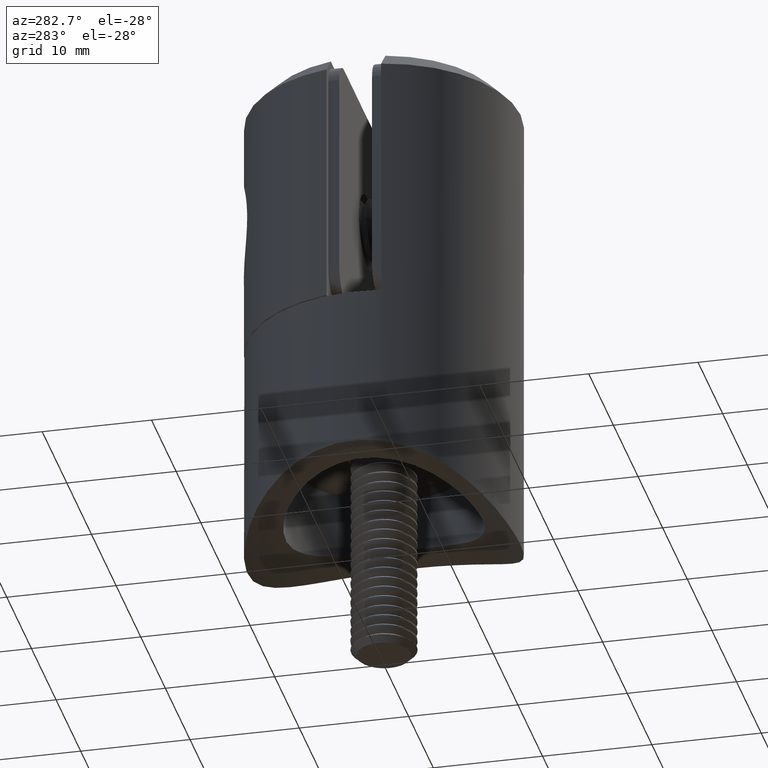
[diagram: clean part render]
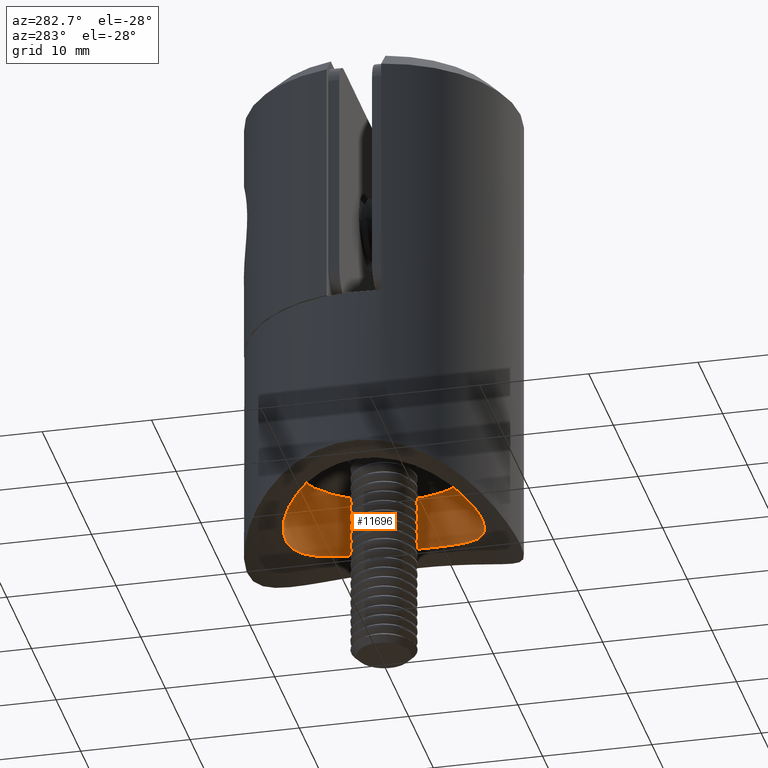
[diagram: same view with one face highlighted and labeled with its STEP entity id]
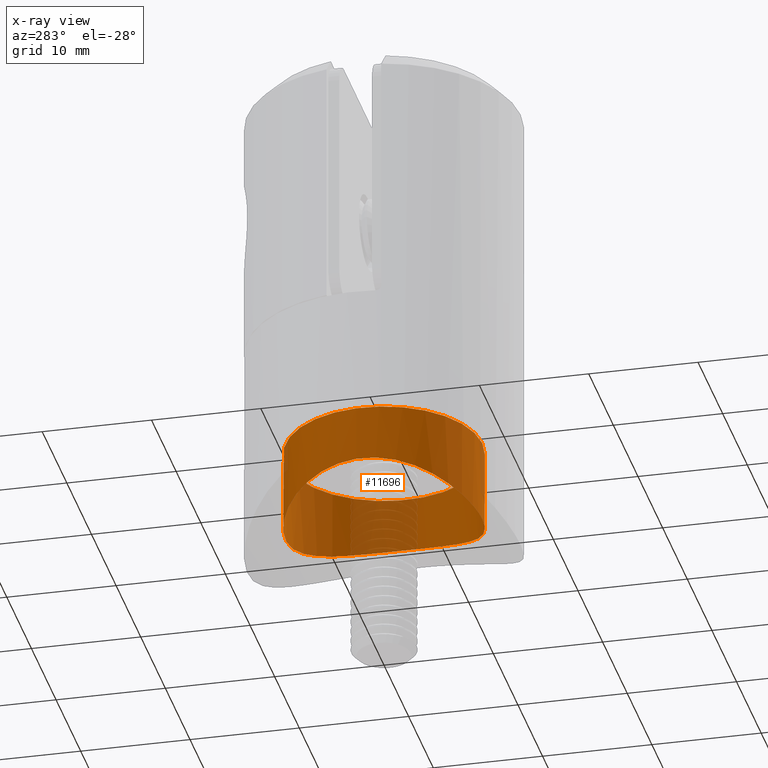
[diagram: x-ray of the same camera — body ghosted, the highlighted face saturated]
A machine part, auxiliary view. The second image highlights one B-rep face of the part: STEP entity #11696.
The next image is the same camera in x-ray: the body ghosted, the highlighted face saturated — about 17% of this face is hidden behind the body in this view.
In plain terms, the highlighted cylindrical surface (bore or boss wall) has radius 9 mm, axis along (0, -0, 1).
Its self-contained STEP definition (entity closure, byte-faithful):
#174 = CARTESIAN_POINT ( 'NONE',  ( 4.021674449052479616, -8.072784026240096722, -2.057415797895000065 ) ) ;
#248 = CARTESIAN_POINT ( 'NONE',  ( 4.532650516029328003, -7.797088794533236999, -1.908139167098889200 ) ) ;
#327 = CARTESIAN_POINT ( 'NONE',  ( 5.517095482785879135, 7.134608504950914920, -1.580667870768156735 ) ) ;
#401 = CARTESIAN_POINT ( 'NONE',  ( 5.961424383751998235, 6.767025709518398990, -1.412278814942806937 ) ) ;
#477 = CARTESIAN_POINT ( 'NONE',  ( -0.6068572968801682066, -8.984605093228687167, -2.595152866920289902 ) ) ;
#553 = CARTESIAN_POINT ( 'NONE',  ( -6.764565898683120970, -5.943528670731239139, -1.081228008002660612 ) ) ;
#634 = CARTESIAN_POINT ( 'NONE',  ( -7.134810432546720982, -5.493574878806451345, -0.9188877272693009024 ) ) ;
#703 = CARTESIAN_POINT ( 'NONE',  ( -0.3035544264433384098, -9.000000000000003553, -2.604913127678025742 ) ) ;
#1010 = VERTEX_POINT ( 'NONE', #16358 ) ;
#1539 = FACE_OUTER_BOUND ( 'NONE', #9888, .T. ) ;
#1887 = CARTESIAN_POINT ( 'NONE',  ( 0.6071088528866762646, -8.999999999999998224, -2.604913127678025297 ) ) ;
#2049 = CARTESIAN_POINT ( 'NONE',  ( 8.062832806003342512, -4.041567885135377125, -0.4825650288407893340 ) ) ;
#2122 = CARTESIAN_POINT ( 'NONE',  ( 1.201100035928155840, -8.939234714585204244, -2.566035329679036359 ) ) ;
#2350 = CARTESIAN_POINT ( 'NONE',  ( -8.516329794651968044, 2.969016380059766202, -0.2544752274107902612 ) ) ;
#2422 = CARTESIAN_POINT ( 'NONE',  ( -3.186124711963689293, 8.422361920626260101, -2.255363534646165125 ) ) ;
#2500 = CARTESIAN_POINT ( 'NONE',  ( -8.883506363623128621, -1.474042599237735285, -0.06200751960803015106 ) ) ;
#3216 = FACE_OUTER_BOUND ( 'NONE', #7604, .T. ) ;
#3680 = CARTESIAN_POINT ( 'NONE',  ( 8.883008077904751332, 1.476751091017766804, -0.06227058032519545983 ) ) ;
#3756 = CARTESIAN_POINT ( 'NONE',  ( 8.404898307200049601, -3.231651342975608632, -0.3104986706441259514 ) ) ;
#3828 = CARTESIAN_POINT ( 'NONE',  ( 8.506565268108300160, -2.954257939733778926, -0.2584842095002851114 ) ) ;
#3901 = CARTESIAN_POINT ( 'NONE',  ( 9.000737208537470835, 0.2776672623730780942, 0.0003937603037528359783 ) ) ;
#3980 = CARTESIAN_POINT ( 'NONE',  ( -3.758905916802290470, -8.182656430668179937, -2.119638485047900645 ) ) ;
#4054 = CARTESIAN_POINT ( 'NONE',  ( -8.694172512475297765, 2.403321873601205638, -0.1616672161600611057 ) ) ;
#4127 = CARTESIAN_POINT ( 'NONE',  ( -2.339698213813243388, 8.695601738897538624, -2.416736740360900360 ) ) ;
#4200 = CARTESIAN_POINT ( 'NONE',  ( -2.951555618486545463, -8.522281340456130394, -2.311744009398445598 ) ) ;
#4273 = CARTESIAN_POINT ( 'NONE',  ( -2.168404344971008868E-16, -9.000000000000001776, -2.604913127678025742 ) ) ;
#5446 = CARTESIAN_POINT ( 'NONE',  ( 2.940399998006669957, -8.526297857816196313, -2.314091560879915743 ) ) ;
#5686 = CARTESIAN_POINT ( 'NONE',  ( 5.937473838987435748, -6.769756498228755248, -1.418430931824774532 ) ) ;
#5760 = CARTESIAN_POINT ( 'NONE',  ( -7.767459701366191460, 4.555459080950839734, -0.6252966877314042327 ) ) ;
#5834 = CARTESIAN_POINT ( 'NONE',  ( -8.986879830245944945, -0.5722147814154134871, -0.007022464014128086685 ) ) ;
#5835 = AXIS2_PLACEMENT_3D ( 'NONE', #15729, #21270, #8842 ) ;
#5899 = EDGE_CURVE ( 'NONE', #12223, #12223, #22097, .T. ) ;
#5913 = CARTESIAN_POINT ( 'NONE',  ( -7.613883850405601450, 4.807725246531381558, -0.6984488539629386539 ) ) ;
#5985 = CARTESIAN_POINT ( 'NONE',  ( -2.390370181689100537, -8.697453753089330775, -2.417513435117696563 ) ) ;
#6059 = CARTESIAN_POINT ( 'NONE',  ( 2.102059484055854632, 8.756187516724763142, -2.453588714871738574 ) ) ;
#6090 = CIRCLE ( 'NONE', #5835, 9.000000000000000000 ) ;
#7159 = CARTESIAN_POINT ( 'NONE',  ( -2.168404344971008868E-16, -9.000000000000001776, -2.604913127678025742 ) ) ;
#7392 = CARTESIAN_POINT ( 'NONE',  ( 8.074481764611894263, 4.019086237761176683, -0.4768262851625539311 ) ) ;
#7471 = CARTESIAN_POINT ( 'NONE',  ( 6.557765720885472938, -6.170767472243698926, -1.169049366952235269 ) ) ;
#7604 = EDGE_LOOP ( 'NONE', ( #23047 ) ) ;
#7618 = CARTESIAN_POINT ( 'NONE',  ( 1.223008817333227416, 8.936562260900341670, -2.564333553120044407 ) ) ;
#7684 = ORIENTED_EDGE ( 'NONE', *, *, #5899, .F. ) ;
#7692 = CARTESIAN_POINT ( 'NONE',  ( -7.783269436300308541, -4.528431843985459615, -0.6177173694178605956 ) ) ;
#7769 = CARTESIAN_POINT ( 'NONE',  ( -8.998160360196068908, 0.6254606039707997223, -0.0009825937895370222708 ) ) ;
#7851 = CARTESIAN_POINT ( 'NONE',  ( -2.052070582208244787, 8.767997700604160727, -2.460788958126638892 ) ) ;
#8779 = CARTESIAN_POINT ( 'NONE',  ( 0.000000000000000000, -9.000000000000000000, -2.604913127678024853 ) ) ;
#8842 = DIRECTION ( 'NONE',  ( 0.000000000000000000, -1.000000000000000000, 0.000000000000000000 ) ) ;
#9027 = CARTESIAN_POINT ( 'NONE',  ( 7.797067203172933780, 4.532702480700874226, -0.6131899224023025230 ) ) ;
#9098 = CARTESIAN_POINT ( 'NONE',  ( 2.365092918737797145, -8.703958528421887664, -2.421463347902026886 ) ) ;
#9175 = CARTESIAN_POINT ( 'NONE',  ( 6.571452150948918103, 6.156201835296487346, -1.163317047625913814 ) ) ;
#9254 = CARTESIAN_POINT ( 'NONE',  ( 7.297147494087158570, -5.276021894448018834, -0.8453118274224331596 ) ) ;
#9417 = CARTESIAN_POINT ( 'NONE',  ( -5.935974566348900083, 6.789418910662329054, -1.422137807243880836 ) ) ;
#9503 = CARTESIAN_POINT ( 'NONE',  ( 3.234350838250579230, 8.403798506831432036, -2.244671233382895092 ) ) ;
#9582 = CARTESIAN_POINT ( 'NONE',  ( -1.208437933319258972, -8.923624948492779652, -2.556899802793691112 ) ) ;
#9653 = CARTESIAN_POINT ( 'NONE',  ( -4.005697824238152016, 8.081130425237397219, -2.061957311337415888 ) ) ;
#9888 = EDGE_LOOP ( 'NONE', ( #7684 ) ) ;
#10010 = AXIS2_PLACEMENT_3D ( 'NONE', #10326, #22814, #21242 ) ;
#10326 = CARTESIAN_POINT ( 'NONE',  ( 0.000000000000000000, 0.000000000000000000, 15.00000000000000000 ) ) ;
#10766 = CARTESIAN_POINT ( 'NONE',  ( 8.937286215225501707, -1.216522046379911792, -0.03371875276809734034 ) ) ;
#10847 = CARTESIAN_POINT ( 'NONE',  ( 7.309796590042279441, 5.258496553154990316, -0.8395366300943820637 ) ) ;
#11083 = CARTESIAN_POINT ( 'NONE',  ( 8.417081813282704772, 3.200048630397409610, -0.3043047385794946380 ) ) ;
#11162 = CARTESIAN_POINT ( 'NONE',  ( -8.061523673450730954, -4.012208138427211246, -0.4824748291423540669 ) ) ;
#11239 = CARTESIAN_POINT ( 'NONE',  ( -7.632550779483405989, -4.777935619119118904, -0.6896250358067936848 ) ) ;
#11309 = CARTESIAN_POINT ( 'NONE',  ( -4.517992317400698177, 7.805392656181976641, -1.912540458132593990 ) ) ;
#11389 = CARTESIAN_POINT ( 'NONE',  ( -8.707274720112538446, -2.353999689058943190, -0.1548163266117390802 ) ) ;
#11468 = CARTESIAN_POINT ( 'NONE',  ( 0.6309608859205878550, 8.997763151772495860, -2.603499907095298660 ) ) ;
#11696 = ADVANCED_FACE ( 'NONE', ( #1539, #3216 ), #18285, .F. ) ;
#12223 = VERTEX_POINT ( 'NONE', #8779 ) ;
#12670 = CARTESIAN_POINT ( 'NONE',  ( 8.758507331697291676, -2.092200281080137891, -0.1278176303844500705 ) ) ;
#12743 = CARTESIAN_POINT ( 'NONE',  ( 6.751927895200894092, -5.957807994985252265, -1.086641762514614973 ) ) ;
#12898 = CARTESIAN_POINT ( 'NONE',  ( 7.121273697717668050, -5.511031421548653775, -0.9249420189717384444 ) ) ;
#13055 = CARTESIAN_POINT ( 'NONE',  ( -5.954642221051528850, -6.773231474935260010, -1.414947323043689531 ) ) ;
#13133 = CARTESIAN_POINT ( 'NONE',  ( -5.510746426112774543, -7.139208689779462880, -1.582878771086205560 ) ) ;
#13208 = CARTESIAN_POINT ( 'NONE',  ( -0.5654481320849249482, 9.002117627807262323, -2.606251025532276611 ) ) ;
#13374 = EDGE_CURVE ( 'NONE', #1010, #1010, #6090, .T. ) ;
#14364 = CARTESIAN_POINT ( 'NONE',  ( 8.927228162158151292, 1.181156269983224760, -0.03877518060709229247 ) ) ;
#14443 = CARTESIAN_POINT ( 'NONE',  ( 6.150538336385890759, -6.576742401764647639, -1.334941400903023823 ) ) ;
#14526 = CARTESIAN_POINT ( 'NONE',  ( 5.491805371263069446, -7.136054399886307742, -1.584363604715454343 ) ) ;
#14668 = CARTESIAN_POINT ( 'NONE',  ( -4.789036509286504817, -7.625567915572273314, -1.823160285720819340 ) ) ;
#14826 = CARTESIAN_POINT ( 'NONE',  ( -7.121846342639296168, 5.533633707270937840, -0.9264732590264234124 ) ) ;
#14905 = CARTESIAN_POINT ( 'NONE',  ( -9.000858815726555662, -0.2721457111335667256, 0.0004587131148253563331 ) ) ;
#14973 = CARTESIAN_POINT ( 'NONE',  ( -4.537604543765375809, -7.777914304797524103, -1.901707409948041771 ) ) ;
#15729 = CARTESIAN_POINT ( 'NONE',  ( 0.000000000000000000, 8.750999659232643128E-18, 5.100000000000000533 ) ) ;
#16142 = CARTESIAN_POINT ( 'NONE',  ( 8.766001538176636743, 2.060544425541007918, -0.1238883919959151148 ) ) ;
#16222 = CARTESIAN_POINT ( 'NONE',  ( 5.258310225204646748, -7.309928328518856766, -1.667105923545979307 ) ) ;
#16358 = CARTESIAN_POINT ( 'NONE',  ( 0.000000000000000000, -9.000000000000000000, 5.100000000000000533 ) ) ;
#16443 = CARTESIAN_POINT ( 'NONE',  ( -5.482500273980068783, 7.160907752727982967, -1.593091655285288955 ) ) ;
#16527 = CARTESIAN_POINT ( 'NONE',  ( -8.937290988820059567, 1.220418569986010393, -0.03372854505642237238 ) ) ;
#16597 = CARTESIAN_POINT ( 'NONE',  ( -6.753306804108660799, 5.977026886871091627, -1.089597385321879219 ) ) ;
#16684 = CARTESIAN_POINT ( 'NONE',  ( 4.548909255757392245, 7.787708627573261211, -1.903203134994748913 ) ) ;
#16758 = CARTESIAN_POINT ( 'NONE',  ( -6.568056148921646020, -6.159890061767200109, -1.164751887033820710 ) ) ;
#17944 = CARTESIAN_POINT ( 'NONE',  ( 8.693213217374987423, 2.348742300159040841, -0.1620132209545272484 ) ) ;
#18101 = CARTESIAN_POINT ( 'NONE',  ( 8.998437823462582585, -0.6241749436309397270, -0.0008343950433961575810 ) ) ;
#18285 = CYLINDRICAL_SURFACE ( 'NONE', #10010, 9.000000000000000000 ) ;
#18326 = CARTESIAN_POINT ( 'NONE',  ( -1.175460298121181912, 8.942784940732853016, -2.568270068185634969 ) ) ;
#18405 = CARTESIAN_POINT ( 'NONE',  ( -8.928204569007862190, -1.174138839021471759, -0.03825648481109164556 ) ) ;
#18480 = CARTESIAN_POINT ( 'NONE',  ( -1.509137806476183563, -8.877634590881921639, -2.528161024891539821 ) ) ;
#18547 = CARTESIAN_POINT ( 'NONE',  ( -8.533463070077409895, -2.921239271995004216, -0.2456855461427894516 ) ) ;
#19646 = CARTESIAN_POINT ( 'NONE',  ( 7.785764892461922493, -4.552025852731574673, -0.6186302868605692007 ) ) ;
#19722 = CARTESIAN_POINT ( 'NONE',  ( 8.519084111116168145, 2.917833501594556900, -0.2520561277269852130 ) ) ;
#19870 = CARTESIAN_POINT ( 'NONE',  ( 6.765425809986876260, 5.942505359260779052, -1.080853520923607869 ) ) ;
#19951 = CARTESIAN_POINT ( 'NONE',  ( 8.986183028970739173, 0.5822777371568736982, -0.007394420722657757926 ) ) ;
#20108 = CARTESIAN_POINT ( 'NONE',  ( 2.959191228520106076, 8.504749320993935768, -2.303446895277071693 ) ) ;
#20180 = CARTESIAN_POINT ( 'NONE',  ( 4.039346743676782481, 8.063690013734731821, -2.052458506225574464 ) ) ;
#20251 = CARTESIAN_POINT ( 'NONE',  ( -7.308321160069399802, -5.260507770464919908, -0.8402078164440885955 ) ) ;
#20324 = CARTESIAN_POINT ( 'NONE',  ( -8.173918097422760098, 3.777935387974452830, -0.4266719453710701715 ) ) ;
#21242 = DIRECTION ( 'NONE',  ( 0.000000000000000000, -1.000000000000000000, 0.000000000000000000 ) ) ;
#21270 = DIRECTION ( 'NONE',  ( -0.000000000000000000, -8.839393595184489370E-19, 1.000000000000000000 ) ) ;
#21454 = CARTESIAN_POINT ( 'NONE',  ( 8.683790020312519786, -2.383502363788869705, -0.1669261620439285443 ) ) ;
#21696 = CARTESIAN_POINT ( 'NONE',  ( 7.134494571433200427, 5.493936980478559384, -0.9190236621247669380 ) ) ;
#21852 = CARTESIAN_POINT ( 'NONE',  ( -8.046985468913812056, 4.041245168714113767, -0.4896350133714367781 ) ) ;
#21930 = CARTESIAN_POINT ( 'NONE',  ( -8.189553005263972452, -3.744279541798008371, -0.4188871328026811947 ) ) ;
#22008 = CARTESIAN_POINT ( 'NONE',  ( 2.394114882269447353, 8.680771144915242488, -2.407798624479785321 ) ) ;
#22087 = CARTESIAN_POINT ( 'NONE',  ( -2.906197388975941376, 8.523009683764776412, -2.314151766958433942 ) ) ;
#22097 = B_SPLINE_CURVE_WITH_KNOTS ( 'NONE', 3,
 ( #7159, #1887, #2122, #9098, #5446, #174, #248, #16222, #14526, #5686, #14443, #7471, #12743, #12898, #9254, #19646, #2049, #3756, #3828, #21454, #12670, #10766, #18101, #3901, #19951, #14364, #3680, #16142, #17944, #19722, #11083, #7392, #9027, #10847, #21696, #19870, #9175, #401, #327, #16684, #20180, #9503, #20108, #22008, #6059, #7618, #11468, #13208, #18326, #7851, #4127, #22087, #2422, #9653, #11309, #16443, #9417, #16597, #14826, #5913, #5760, #21852, #20324, #2350, #4054, #16527, #7769, #14905, #5834, #18405, #2500, #11389, #18547, #21930, #11162, #7692, #11239, #20251, #634, #553, #16758, #13055, #13133, #14668, #14973, #22158, #3980, #4200, #5985, #18480, #9582, #477, #703, #4273 ),
 .UNSPECIFIED., .T., .F.,
 ( 4, 2, 2, 2, 2, 2, 2, 2, 2, 2, 2, 2, 2, 2, 2, 2, 2, 2, 2, 2, 2, 2, 2, 2, 2, 2, 2, 2, 2, 2, 2, 2, 2, 2, 2, 2, 2, 2, 2, 2, 2, 2, 2, 2, 2, 2, 4 ),
 ( 0.000000000000000000, 0.001791929199387558595, 0.003583858398775117190, 0.005375787598162675568, 0.006271752197856454540, 0.007167716797550232645, 0.008063681397244011617, 0.008959645996937791457, 0.01075157519632534940, 0.01164753979601912577, 0.01254350439571290388, 0.01433543359510046009, 0.01523139819479423646, 0.01612736279448801283, 0.01702332739418178920, 0.01791929199387556557, 0.01971122119326312178, 0.02060718579295690162, 0.02150315039265067799, 0.02329507959203823766, 0.02508700879142580081, 0.02598297339111958065, 0.02687893799081336049, 0.02867086719020092364, 0.03046279638958848332, 0.03135876098928226663, 0.03225472558897604647, 0.03404665478836359921, 0.03583858398775115889, 0.03763051318713871857, 0.03852647778683249841, 0.03942244238652627825, 0.04121437158591384486, 0.04300630078530140454, 0.04390226538499518438, 0.04479822998468896422, 0.04659015918407653084, 0.04748612378377031068, 0.04838208838346409052, 0.04927805298315787036, 0.05017401758285164326, 0.05196594678223920988, 0.05286191138193298972, 0.05375787598162676956, 0.05554980518101432924, 0.05644576978070810908, 0.05734173438040188892 ),
 .UNSPECIFIED. ) ;
#22158 = CARTESIAN_POINT ( 'NONE',  ( -4.022235242260662424, -8.056514729353528637, -2.050000922084967758 ) ) ;
#22814 = DIRECTION ( 'NONE',  ( -0.000000000000000000, -8.839393595184489370E-19, 1.000000000000000000 ) ) ;
#23047 = ORIENTED_EDGE ( 'NONE', *, *, #13374, .T. ) ;